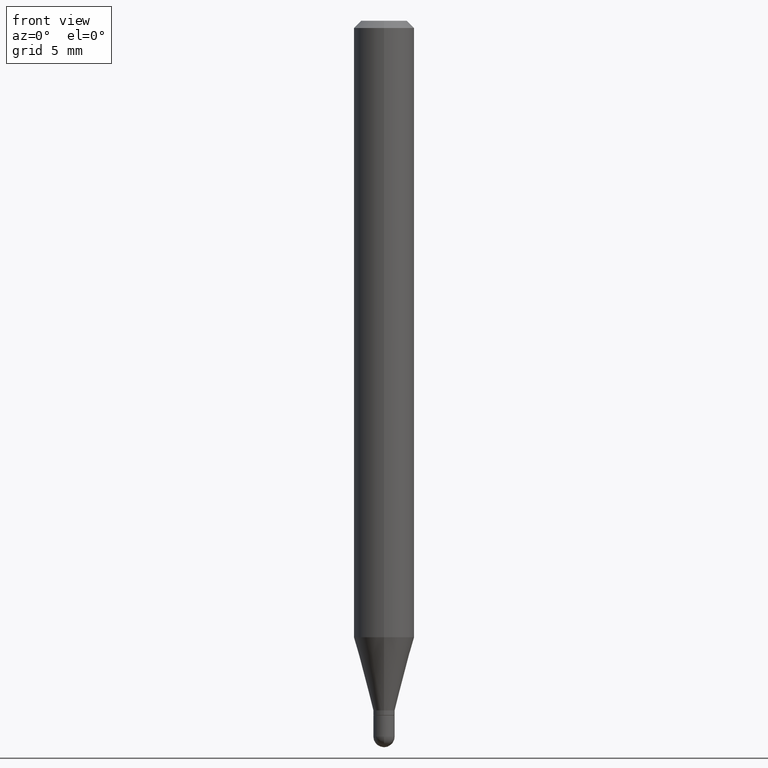
[diagram: clean part render]
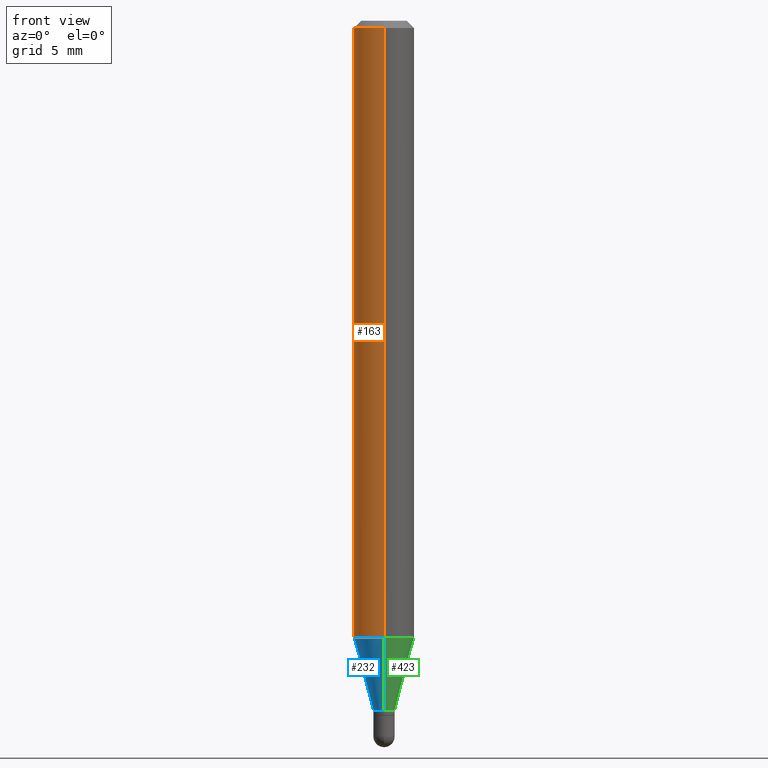
[diagram: same view with three faces highlighted in distinct colors, each labeled with its STEP entity id]
A machine part, front view with three faces highlighted in distinct colors.
Their STEP definitions:

[orange] entity #163 — the highlighted cylindrical surface (edge-blend (fillet) strip) has radius 1.5875 mm, axis along (-0, 0, 1).
#14 = DIRECTION ( 'NONE',  ( -2.445462405092277740E-29, 3.491490505572446944E-15, 1.000000000000000000 ) ) ;
#20 = ORIENTED_EDGE ( 'NONE', *, *, #395, .F. ) ;
#27 = DIRECTION ( 'NONE',  ( -6.982962677686265922E-15, -1.000000000000000000, 4.370956789862821150E-15 ) ) ;
#39 = CARTESIAN_POINT ( 'NONE',  ( 4.440892098500625669E-16, 0.06250000000000000000, -2.182181565982779340E-16 ) ) ;
#48 = VECTOR ( 'NONE', #350, 39.37007874015748143 ) ;
#56 = EDGE_CURVE ( 'NONE', #319, #201, #344, .T. ) ;
#58 = CARTESIAN_POINT ( 'NONE',  ( 4.440892098500938748E-16, 0.06249999999999995143, -0.01500000000000054588 ) ) ;
#60 = DIRECTION ( 'NONE',  ( -2.445462405092277460E-29, 3.491490505572446944E-15, 1.000000000000000000 ) ) ;
#77 = AXIS2_PLACEMENT_3D ( 'NONE', #449, #486, #343 ) ;
#98 = DIRECTION ( 'NONE',  ( -2.445462405092277740E-29, 3.491490505572446944E-15, 1.000000000000000000 ) ) ;
#110 = CYLINDRICAL_SURFACE ( 'NONE', #77, 0.06250000000000000000 ) ;
#114 = ORIENTED_EDGE ( 'NONE', *, *, #247, .T. ) ;
#126 = ORIENTED_EDGE ( 'NONE', *, *, #56, .F. ) ;
#135 = ORIENTED_EDGE ( 'NONE', *, *, #194, .T. ) ;
#142 = LINE ( 'NONE', #412, #150 ) ;
#149 = EDGE_LOOP ( 'NONE', ( #126, #135, #114, #20 ) ) ;
#150 = VECTOR ( 'NONE', #60, 39.37007874015748143 ) ;
#163 = ADVANCED_FACE ( 'NONE', ( #379 ), #110, .T. ) ;
#194 = EDGE_CURVE ( 'NONE', #319, #370, #454, .T. ) ;
#200 = CIRCLE ( 'NONE', #481, 0.06250000000000000000 ) ;
#201 = VERTEX_POINT ( 'NONE', #58 ) ;
#206 = CARTESIAN_POINT ( 'NONE',  ( 3.668193607638497220E-31, -5.237235758358785737E-17, -0.01500000000000032904 ) ) ;
#229 = CARTESIAN_POINT ( 'NONE',  ( 3.112711572127344599E-29, -4.444150471517067241E-15, -1.272851942293461214 ) ) ;
#241 = AXIS2_PLACEMENT_3D ( 'NONE', #229, #98, #27 ) ;
#247 = EDGE_CURVE ( 'NONE', #370, #441, #142, .T. ) ;
#319 = VERTEX_POINT ( 'NONE', #353 ) ;
#324 = DIRECTION ( 'NONE',  ( -6.982962677686265922E-15, -1.000000000000000000, 3.483106191921935554E-15 ) ) ;
#341 = CARTESIAN_POINT ( 'NONE',  ( -4.364351673553912750E-16, -0.06250000000000005551, -0.01500000000000011047 ) ) ;
#343 = DIRECTION ( 'NONE',  ( -6.982962677686265922E-15, -1.000000000000000000, 3.491490505572446944E-15 ) ) ;
#344 = LINE ( 'NONE', #39, #48 ) ;
#350 = DIRECTION ( 'NONE',  ( -2.445462405092277460E-29, 3.491490505572446944E-15, 1.000000000000000000 ) ) ;
#353 = CARTESIAN_POINT ( 'NONE',  ( 4.440892098500934804E-16, 0.06249999999999553135, -1.272851942293461436 ) ) ;
#370 = VERTEX_POINT ( 'NONE', #467 ) ;
#379 = FACE_OUTER_BOUND ( 'NONE', #149, .T. ) ;
#395 = EDGE_CURVE ( 'NONE', #201, #441, #200, .T. ) ;
#412 = CARTESIAN_POINT ( 'NONE',  ( -4.364351673553916201E-16, -0.06250000000000000000, 2.182181565982779340E-16 ) ) ;
#441 = VERTEX_POINT ( 'NONE', #341 ) ;
#449 = CARTESIAN_POINT ( 'NONE',  ( 0.000000000000000000, 0.000000000000000000, 0.000000000000000000 ) ) ;
#454 = CIRCLE ( 'NONE', #241, 0.06250000000000000000 ) ;
#467 = CARTESIAN_POINT ( 'NONE',  ( -4.364351673553605587E-16, -0.06250000000000446865, -1.272851942293460770 ) ) ;
#481 = AXIS2_PLACEMENT_3D ( 'NONE', #206, #14, #324 ) ;
#486 = DIRECTION ( 'NONE',  ( -2.445462405092277740E-29, 3.491490505572446944E-15, 1.000000000000000000 ) ) ;

[blue] entity #232 — the highlighted conical surface has half-angle 15 deg.
#11 = CONICAL_SURFACE ( 'NONE', #444, 0.02199999999999992240, 0.2617993877991502960 ) ;
#18 = FACE_OUTER_BOUND ( 'NONE', #236, .T. ) ;
#27 = DIRECTION ( 'NONE',  ( -6.982962677686265922E-15, -1.000000000000000000, 4.370956789862821150E-15 ) ) ;
#44 = LINE ( 'NONE', #202, #161 ) ;
#63 = DIRECTION ( 'NONE',  ( -6.982962677686265133E-15, -1.000000000000000000, 0.000000000000000000 ) ) ;
#69 = DIRECTION ( 'NONE',  ( -2.445462405092277740E-29, 3.491490505572446944E-15, 1.000000000000000000 ) ) ;
#76 = DIRECTION ( 'NONE',  ( 1.839019923739600315E-15, 0.2588190451025249583, 0.9659258262890670910 ) ) ;
#98 = DIRECTION ( 'NONE',  ( -2.445462405092277740E-29, 3.491490505572446944E-15, 1.000000000000000000 ) ) ;
#106 = DIRECTION ( 'NONE',  ( -1.807323732225330139E-15, -0.2588190451025181860, 0.9659258262890689783 ) ) ;
#118 = CARTESIAN_POINT ( 'NONE',  ( 3.002043058586750864E-16, 0.02199999999999494721, -1.424000000000000377 ) ) ;
#121 = ORIENTED_EDGE ( 'NONE', *, *, #194, .F. ) ;
#123 = CARTESIAN_POINT ( 'NONE',  ( -1.536251789090624606E-16, -0.02200000000000489411, -1.424000000000000377 ) ) ;
#146 = VERTEX_POINT ( 'NONE', #118 ) ;
#161 = VECTOR ( 'NONE', #76, 39.37007874015748143 ) ;
#170 = ORIENTED_EDGE ( 'NONE', *, *, #285, .T. ) ;
#171 = VECTOR ( 'NONE', #106, 39.37007874015748143 ) ;
#173 = DIRECTION ( 'NONE',  ( -6.982962677686265133E-15, -1.000000000000000000, 0.000000000000000000 ) ) ;
#176 = AXIS2_PLACEMENT_3D ( 'NONE', #255, #289, #173 ) ;
#194 = EDGE_CURVE ( 'NONE', #319, #370, #454, .T. ) ;
#202 = CARTESIAN_POINT ( 'NONE',  ( 1.563194018672562733E-16, 0.02199999999999494721, -1.424000000000000377 ) ) ;
#229 = CARTESIAN_POINT ( 'NONE',  ( 3.112711572127344599E-29, -4.444150471517067241E-15, -1.272851942293461214 ) ) ;
#232 = ADVANCED_FACE ( 'NONE', ( #18 ), #11, .T. ) ;
#236 = EDGE_LOOP ( 'NONE', ( #446, #377, #170, #121 ) ) ;
#241 = AXIS2_PLACEMENT_3D ( 'NONE', #229, #98, #27 ) ;
#252 = CIRCLE ( 'NONE', #176, 0.02199999999999992240 ) ;
#255 = CARTESIAN_POINT ( 'NONE',  ( 3.482338464851404049E-29, -4.971882479935166076E-15, -1.424000000000000377 ) ) ;
#285 = EDGE_CURVE ( 'NONE', #505, #370, #303, .T. ) ;
#289 = DIRECTION ( 'NONE',  ( -2.445462405092277740E-29, 3.491490505572446944E-15, 1.000000000000000000 ) ) ;
#303 = LINE ( 'NONE', #452, #171 ) ;
#319 = VERTEX_POINT ( 'NONE', #353 ) ;
#353 = CARTESIAN_POINT ( 'NONE',  ( 4.440892098500934804E-16, 0.06249999999999553135, -1.272851942293461436 ) ) ;
#370 = VERTEX_POINT ( 'NONE', #467 ) ;
#377 = ORIENTED_EDGE ( 'NONE', *, *, #400, .T. ) ;
#382 = EDGE_CURVE ( 'NONE', #146, #319, #44, .T. ) ;
#400 = EDGE_CURVE ( 'NONE', #146, #505, #252, .T. ) ;
#415 = CARTESIAN_POINT ( 'NONE',  ( 3.482338464851404049E-29, -4.971882479935166076E-15, -1.424000000000000377 ) ) ;
#444 = AXIS2_PLACEMENT_3D ( 'NONE', #415, #69, #63 ) ;
#446 = ORIENTED_EDGE ( 'NONE', *, *, #382, .F. ) ;
#452 = CARTESIAN_POINT ( 'NONE',  ( -1.536251789090624606E-16, -0.02200000000000489411, -1.424000000000000377 ) ) ;
#454 = CIRCLE ( 'NONE', #241, 0.06250000000000000000 ) ;
#467 = CARTESIAN_POINT ( 'NONE',  ( -4.364351673553605587E-16, -0.06250000000000446865, -1.272851942293460770 ) ) ;
#505 = VERTEX_POINT ( 'NONE', #123 ) ;

[green] entity #423 — the highlighted conical surface has half-angle 15 deg.
#31 = DIRECTION ( 'NONE',  ( -6.982962677686265133E-15, -1.000000000000000000, 0.000000000000000000 ) ) ;
#44 = LINE ( 'NONE', #202, #161 ) ;
#72 = DIRECTION ( 'NONE',  ( -2.445462405092277740E-29, 3.491490505572446944E-15, 1.000000000000000000 ) ) ;
#76 = DIRECTION ( 'NONE',  ( 1.839019923739600315E-15, 0.2588190451025249583, 0.9659258262890670910 ) ) ;
#92 = AXIS2_PLACEMENT_3D ( 'NONE', #158, #195, #398 ) ;
#106 = DIRECTION ( 'NONE',  ( -1.807323732225330139E-15, -0.2588190451025181860, 0.9659258262890689783 ) ) ;
#118 = CARTESIAN_POINT ( 'NONE',  ( 3.002043058586750864E-16, 0.02199999999999494721, -1.424000000000000377 ) ) ;
#123 = CARTESIAN_POINT ( 'NONE',  ( -1.536251789090624606E-16, -0.02200000000000489411, -1.424000000000000377 ) ) ;
#146 = VERTEX_POINT ( 'NONE', #118 ) ;
#158 = CARTESIAN_POINT ( 'NONE',  ( 3.482338464851404049E-29, -4.971882479935166076E-15, -1.424000000000000377 ) ) ;
#161 = VECTOR ( 'NONE', #76, 39.37007874015748143 ) ;
#167 = CARTESIAN_POINT ( 'NONE',  ( 3.112711572127344599E-29, -4.444150471517067241E-15, -1.272851942293461214 ) ) ;
#171 = VECTOR ( 'NONE', #106, 39.37007874015748143 ) ;
#187 = EDGE_LOOP ( 'NONE', ( #405, #433, #263, #224 ) ) ;
#193 = CIRCLE ( 'NONE', #293, 0.06250000000000000000 ) ;
#195 = DIRECTION ( 'NONE',  ( -2.445462405092277740E-29, 3.491490505572446944E-15, 1.000000000000000000 ) ) ;
#202 = CARTESIAN_POINT ( 'NONE',  ( 1.563194018672562733E-16, 0.02199999999999494721, -1.424000000000000377 ) ) ;
#204 = CARTESIAN_POINT ( 'NONE',  ( 3.482338464851404049E-29, -4.971882479935166076E-15, -1.424000000000000377 ) ) ;
#224 = ORIENTED_EDGE ( 'NONE', *, *, #285, .F. ) ;
#245 = FACE_OUTER_BOUND ( 'NONE', #187, .T. ) ;
#263 = ORIENTED_EDGE ( 'NONE', *, *, #309, .F. ) ;
#285 = EDGE_CURVE ( 'NONE', #505, #370, #303, .T. ) ;
#293 = AXIS2_PLACEMENT_3D ( 'NONE', #167, #317, #469 ) ;
#303 = LINE ( 'NONE', #452, #171 ) ;
#309 = EDGE_CURVE ( 'NONE', #370, #319, #193, .T. ) ;
#317 = DIRECTION ( 'NONE',  ( -2.445462405092277740E-29, 3.491490505572446944E-15, 1.000000000000000000 ) ) ;
#319 = VERTEX_POINT ( 'NONE', #353 ) ;
#353 = CARTESIAN_POINT ( 'NONE',  ( 4.440892098500934804E-16, 0.06249999999999553135, -1.272851942293461436 ) ) ;
#370 = VERTEX_POINT ( 'NONE', #467 ) ;
#375 = EDGE_CURVE ( 'NONE', #505, #146, #461, .T. ) ;
#382 = EDGE_CURVE ( 'NONE', #146, #319, #44, .T. ) ;
#398 = DIRECTION ( 'NONE',  ( -6.982962677686265133E-15, -1.000000000000000000, 0.000000000000000000 ) ) ;
#401 = AXIS2_PLACEMENT_3D ( 'NONE', #204, #72, #31 ) ;
#405 = ORIENTED_EDGE ( 'NONE', *, *, #375, .T. ) ;
#423 = ADVANCED_FACE ( 'NONE', ( #245 ), #511, .T. ) ;
#433 = ORIENTED_EDGE ( 'NONE', *, *, #382, .T. ) ;
#452 = CARTESIAN_POINT ( 'NONE',  ( -1.536251789090624606E-16, -0.02200000000000489411, -1.424000000000000377 ) ) ;
#461 = CIRCLE ( 'NONE', #92, 0.02199999999999992240 ) ;
#467 = CARTESIAN_POINT ( 'NONE',  ( -4.364351673553605587E-16, -0.06250000000000446865, -1.272851942293460770 ) ) ;
#469 = DIRECTION ( 'NONE',  ( -6.982962677686265922E-15, -1.000000000000000000, 4.370956789862821150E-15 ) ) ;
#505 = VERTEX_POINT ( 'NONE', #123 ) ;
#511 = CONICAL_SURFACE ( 'NONE', #401, 0.02199999999999992240, 0.2617993877991502960 ) ;